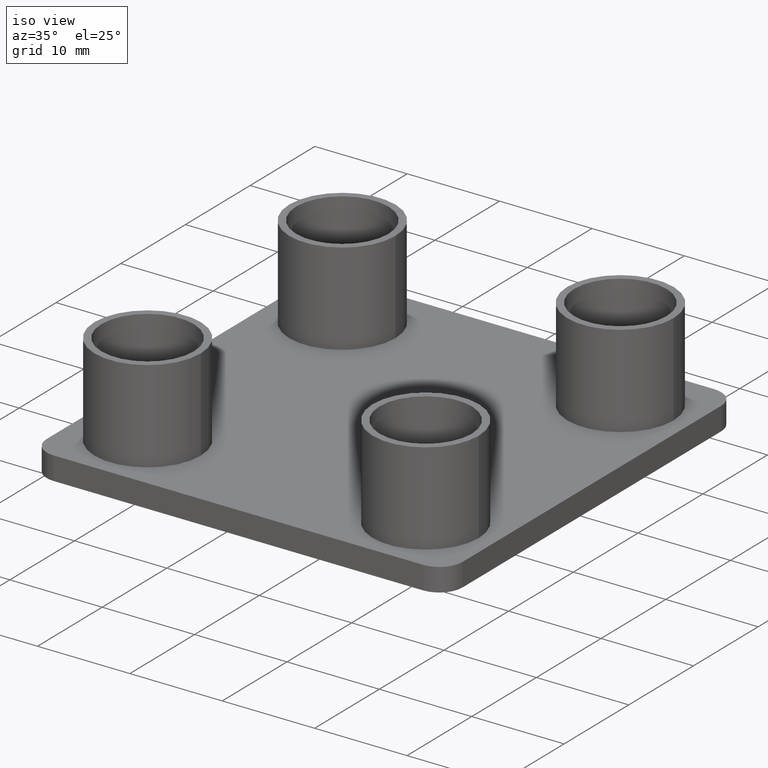
[diagram: clean part render]
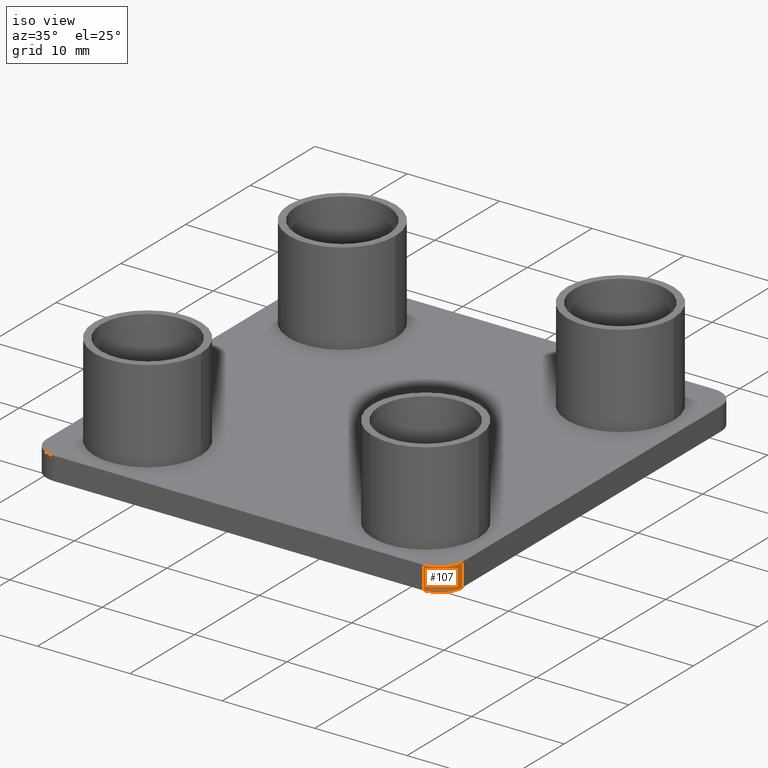
[diagram: same view with one face highlighted and labeled with its STEP entity id]
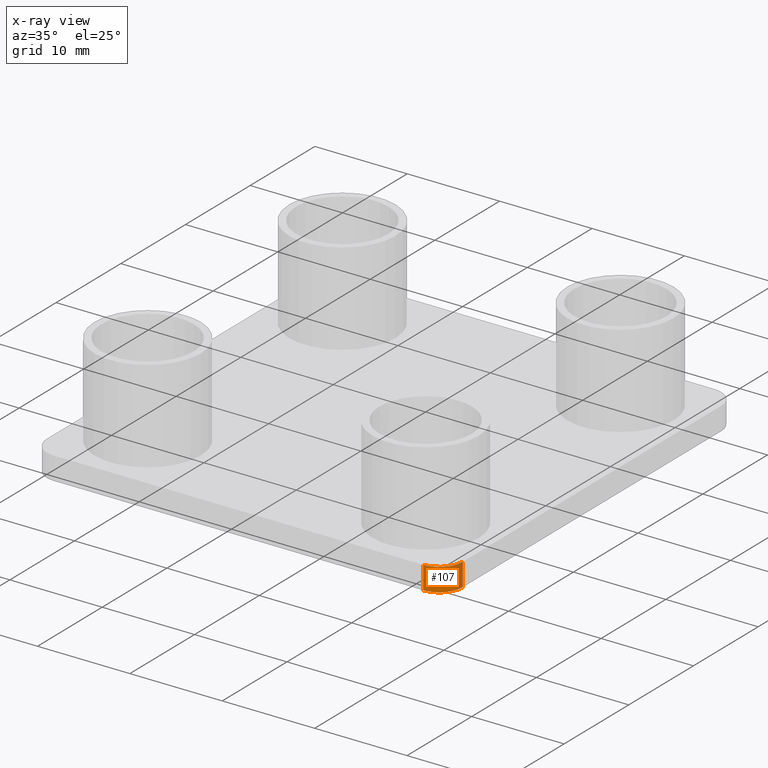
[diagram: x-ray of the same camera — body ghosted, the highlighted face saturated]
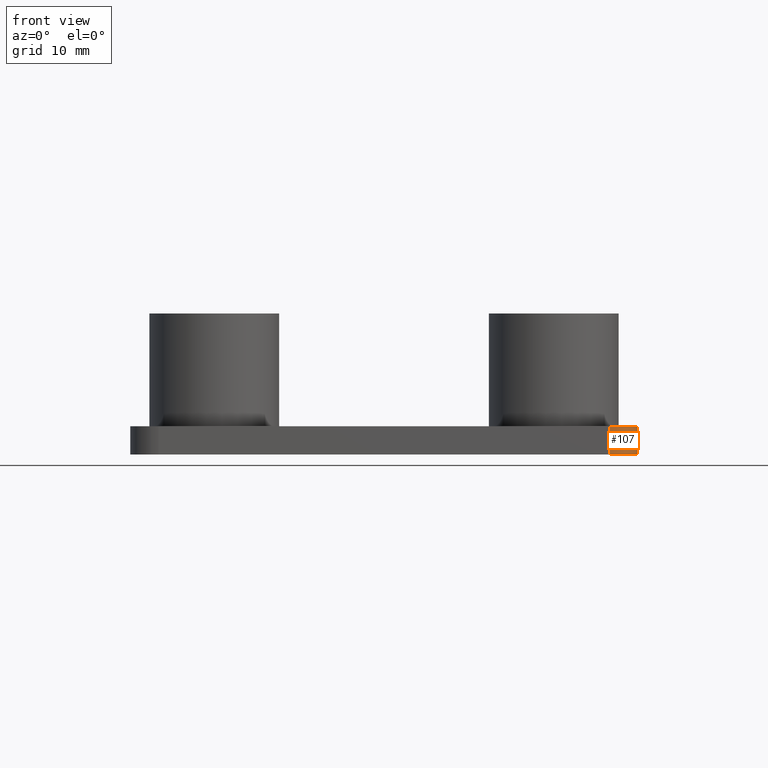
[diagram: same view with one face highlighted and labeled with its STEP entity id]
A machine part, iso view. The second image highlights one B-rep face of the part: STEP entity #107.
The next image is the same camera in x-ray: the body ghosted, the highlighted face saturated — about 0% of this face is hidden behind the body in this view.
A second angle (front view) of the same face is appended — the face is thin or edge-on in the first view.
In plain terms, the highlighted cylindrical surface (edge-blend (fillet) strip) has radius 2.5 mm, axis along (0, 0, 1).
Its self-contained STEP definition (entity closure, byte-faithful):
#50=CARTESIAN_POINT('',(42.499954499829528,-22.499978499909957,-2.500000000000000));
#51=VERTEX_POINT('',#50);
#58=CARTESIAN_POINT('',(42.499954499829528,-22.499978499909957,0.0));
#59=VERTEX_POINT('',#58);
#60=CARTESIAN_POINT('',(42.499954499829528,-22.499978499909957,0.0));
#61=DIRECTION('',(0.0,0.0,-1.0));
#62=VECTOR('',#61,2.500000000000000);
#63=LINE('',#60,#62);
#64=EDGE_CURVE('',#59,#51,#63,.T.);
#75=CARTESIAN_POINT('',(42.499954499829528,-19.999978499919962,0.0));
#76=DIRECTION('',(0.0,0.0,1.0));
#77=DIRECTION('',(5.053215E-016,-1.0,0.0));
#78=AXIS2_PLACEMENT_3D('',#75,#76,#77);
#79=CYLINDRICAL_SURFACE('',#78,2.499999999990000);
#80=ORIENTED_EDGE('',*,*,#64,.T.);
#81=CARTESIAN_POINT('',(44.999954499819978,-19.999978499919962,-2.500000000000000));
#82=VERTEX_POINT('',#81);
#83=CARTESIAN_POINT('',(42.499954499829528,-19.999978499919962,-2.500000000000000));
#84=DIRECTION('',(0.0,0.0,1.0));
#85=DIRECTION('',(1.0,0.0,0.0));
#86=AXIS2_PLACEMENT_3D('',#83,#84,#85);
#87=CIRCLE('',#86,2.499999999990000);
#88=EDGE_CURVE('',#51,#82,#87,.T.);
#89=ORIENTED_EDGE('',*,*,#88,.T.);
#90=CARTESIAN_POINT('',(44.999954499819978,-19.999978499919962,0.0));
#91=VERTEX_POINT('',#90);
#92=CARTESIAN_POINT('',(44.999954499819978,-19.999978499919962,0.0));
#93=DIRECTION('',(0.0,0.0,-1.0));
#94=VECTOR('',#93,2.500000000000000);
#95=LINE('',#92,#94);
#96=EDGE_CURVE('',#91,#82,#95,.T.);
#97=ORIENTED_EDGE('',*,*,#96,.F.);
#98=CARTESIAN_POINT('',(42.499954499829528,-19.999978499919962,0.0));
#99=DIRECTION('',(0.0,0.0,1.0));
#100=DIRECTION('',(1.0,0.0,0.0));
#101=AXIS2_PLACEMENT_3D('',#98,#99,#100);
#102=CIRCLE('',#101,2.499999999990000);
#103=EDGE_CURVE('',#59,#91,#102,.T.);
#104=ORIENTED_EDGE('',*,*,#103,.F.);
#105=EDGE_LOOP('',(#80,#89,#97,#104));
#106=FACE_OUTER_BOUND('',#105,.T.);
#107=ADVANCED_FACE('',(#106),#79,.T.);